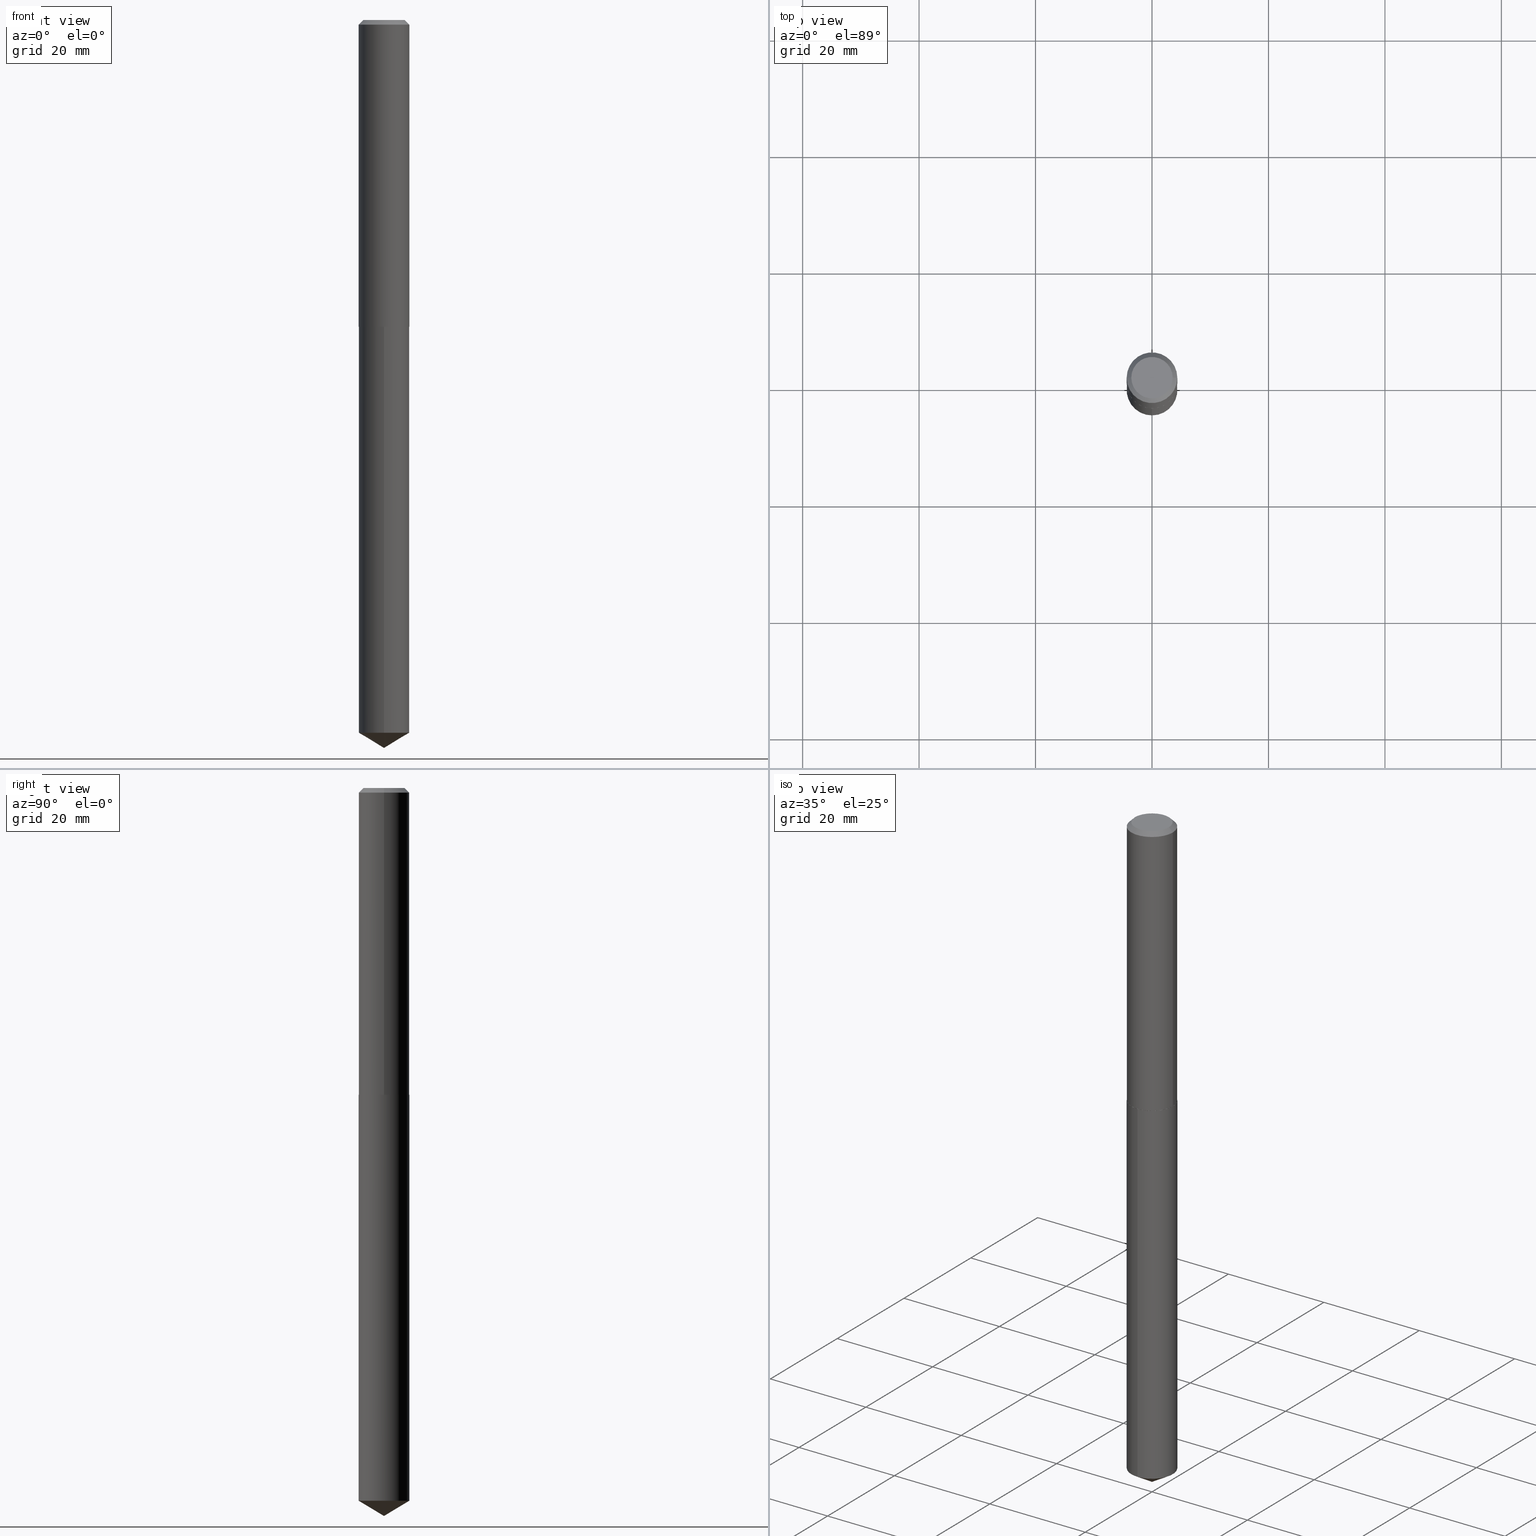
[diagram: canonical four-view strip — front | top / right | iso, engineering-drawing reading convention]
A machine part, canonical four-view strip (front | top / right | iso — engineering-drawing reading convention). The complete STEP part file that produces these views, byte-faithful:
ISO-10303-21;
HEADER;
FILE_DESCRIPTION (( 'STEP AP203' ),
    '1' );
FILE_NAME ('68355.STEP',
    '2024-04-23T13:14:00',
    ( '' ),
    ( '' ),
    'SwSTEP 2.0',
    'SolidWorks 2023',
    '' );
FILE_SCHEMA (( 'CONFIG_CONTROL_DESIGN' ));
ENDSEC;

DATA;
#1 = PLANE ( 'NONE',  #218 ) ;
#2 = CC_DESIGN_DATE_AND_TIME_ASSIGNMENT ( #336, #76, ( #69 ) ) ;
#3 = DIRECTION ( 'NONE',  ( -0.7071067811865454633, 2.468850131082235367E-15, -0.7071067811865495711 ) ) ;
#4 = ORIENTED_EDGE ( 'NONE', *, *, #39, .F. ) ;
#5 = CARTESIAN_POINT ( 'NONE',  ( 5.070190475863642689E-29, -7.238888259823493055E-15, -2.073299999999999699 ) ) ;
#6 = APPROVAL_DATE_TIME ( #243, #147 ) ;
#7 = CIRCLE ( 'NONE', #382, 0.1712500000000000133 ) ;
#8 = LINE ( 'NONE', #270, #57 ) ;
#9 = ADVANCED_FACE ( 'NONE', ( #172 ), #342, .T. ) ;
#10 = PERSON_AND_ORGANIZATION ( #262, #98 ) ;
#11 = DIRECTION ( 'NONE',  ( -2.445501526088303412E-29, 3.491434482079509131E-15, 1.000000000000000000 ) ) ;
#12 =( NAMED_UNIT ( * ) PLANE_ANGLE_UNIT ( ) SI_UNIT ( $, .RADIAN. ) );
#13 = EDGE_LOOP ( 'NONE', ( #50, #310 ) ) ;
#14 = CIRCLE ( 'NONE', #73, 0.1712500000000002354 ) ;
#15 = CIRCLE ( 'NONE', #289, 0.1712500000000000133 ) ;
#16 = AXIS2_PLACEMENT_3D ( 'NONE', #90, #11, #121 ) ;
#17 = EDGE_LOOP ( 'NONE', ( #228, #288, #136, #4 ) ) ;
#18 = CC_DESIGN_PERSON_AND_ORGANIZATION_ASSIGNMENT ( #334, #369, ( #69 ) ) ;
#19 = PERSON_AND_ORGANIZATION_ROLE ( 'design_owner' ) ;
#20 = VERTEX_POINT ( 'NONE', #335 ) ;
#21 = ORIENTED_EDGE ( 'NONE', *, *, #84, .T. ) ;
#22 = CONICAL_SURFACE ( 'NONE', #182, 65.52281426576962531, 1.029744258676662527 ) ;
#23 = ORIENTED_EDGE ( 'NONE', *, *, #144, .F. ) ;
#24 = SECURITY_CLASSIFICATION ( '', '', #324 ) ;
#25 = DESIGN_CONTEXT ( 'detailed design', #119, 'design' ) ;
#26 = VERTEX_POINT ( 'NONE', #290 ) ;
#27 = DIRECTION ( 'NONE',  ( -2.445468806185136597E-29, 3.491481338843145583E-15, 1.000000000000000000 ) ) ;
#28 = EDGE_CURVE ( 'NONE', #26, #370, #122, .T. ) ;
#29 = CARTESIAN_POINT ( 'NONE',  ( 1.203504666033836704E-28, -1.718239651665788974E-14, -4.921299999999999564 ) ) ;
#30 = LINE ( 'NONE', #173, #64 ) ;
#31 = ORIENTED_EDGE ( 'NONE', *, *, #171, .T. ) ;
#32 = CARTESIAN_POINT ( 'NONE',  ( 1.216804434989222150E-15, 0.1712499999999927691, -2.073800000000000310 ) ) ;
#33 = DIRECTION ( 'NONE',  ( -2.445501526088303412E-29, 3.491434482079509131E-15, 1.000000000000000000 ) ) ;
#34 = EDGE_CURVE ( 'NONE', #20, #307, #311, .T. ) ;
#35 = VECTOR ( 'NONE', #3, 39.37007874015748143 ) ;
#36 = DIRECTION ( 'NONE',  ( -2.438088387897960049E-29, 3.491481338843145188E-15, 1.000000000000000000 ) ) ;
#37 = DIRECTION ( 'NONE',  ( -2.445468806185136597E-29, 3.491481338843145583E-15, 1.000000000000000000 ) ) ;
#38 = PERSON_AND_ORGANIZATION ( #262, #98 ) ;
#39 = EDGE_CURVE ( 'NONE', #79, #159, #378, .T. ) ;
#40 = FACE_OUTER_BOUND ( 'NONE', #359, .T. ) ;
#41 = DIRECTION ( 'NONE',  ( 1.000000000000000000, -6.982962677686265133E-15, 0.000000000000000000 ) ) ;
#42 = DATE_AND_TIME ( #215, #107 ) ;
#43 = CARTESIAN_POINT ( 'NONE',  ( 1.178334310351648346E-28, -1.682323422404567893E-14, -4.818402618991531661 ) ) ;
#44 = LINE ( 'NONE', #214, #35 ) ;
#45 = DIRECTION ( 'NONE',  ( 1.000000000000000000, -6.982962677686266711E-15, 0.000000000000000000 ) ) ;
#46 = CC_DESIGN_PERSON_AND_ORGANIZATION_ASSIGNMENT ( #10, #331, ( #24 ) ) ;
#47 = CARTESIAN_POINT ( 'NONE',  ( 7.642090019328598283E-31, -1.091087918388489651E-16, -0.03125000000000019429 ) ) ;
#48 = APPROVAL_ROLE ( '' ) ;
#49 = APPROVAL_PERSON_ORGANIZATION ( #191, #147, #92 ) ;
#50 = ORIENTED_EDGE ( 'NONE', *, *, #332, .T. ) ;
#51 = DIRECTION ( 'NONE',  ( 2.445468806185136597E-29, -3.491481338843145583E-15, -1.000000000000000000 ) ) ;
#52 = EDGE_LOOP ( 'NONE', ( #23, #185, #142, #68 ) ) ;
#53 = CLOSED_SHELL ( 'NONE', ( #294, #9, #105, #303, #264, #200, #97, #242 ) ) ;
#54 = CARTESIAN_POINT ( 'NONE',  ( 0.000000000000000000, 0.000000000000000000, 0.000000000000000000 ) ) ;
#55 = CONICAL_SURFACE ( 'NONE', #96, 0.1712500000000002354, 0.7853981633970044118 ) ;
#56 = ORIENTED_EDGE ( 'NONE', *, *, #319, .F. ) ;
#57 = VECTOR ( 'NONE', #272, 39.37007874015748143 ) ;
#58 = CARTESIAN_POINT ( 'NONE',  ( 1.216804434989290189E-15, 0.1712499999999927691, -2.073800000000000310 ) ) ;
#59 = CARTESIAN_POINT ( 'NONE',  ( 5.070190475863642689E-29, -7.238888259823493055E-15, -2.073299999999999699 ) ) ;
#60 = CIRCLE ( 'NONE', #273, 0.1707500000000004847 ) ;
#61 = EDGE_CURVE ( 'NONE', #307, #20, #7, .T. ) ;
#62 = DIRECTION ( 'NONE',  ( 1.000000000000000000, -6.982962677686265922E-15, 4.876177996939016778E-29 ) ) ;
#63 = CARTESIAN_POINT ( 'NONE',  ( 0.1400000000000000133, -1.122219396822619173E-15, 2.388061258410762627E-19 ) ) ;
#64 = VECTOR ( 'NONE', #291, 39.37007874015748143 ) ;
#65 = AXIS2_PLACEMENT_3D ( 'NONE', #104, #193, #221 ) ;
#66 = CALENDAR_DATE ( 2024, 23, 4 ) ;
#67 = PLANE ( 'NONE',  #352 ) ;
#68 = ORIENTED_EDGE ( 'NONE', *, *, #110, .F. ) ;
#69 = PRODUCT_DEFINITION ( 'UNKNOWN', '', #274, #25 ) ;
#70 = CARTESIAN_POINT ( 'NONE',  ( 5.071413210266735491E-29, -7.240634000492913769E-15, -2.073799999999999422 ) ) ;
#71 = DIRECTION ( 'NONE',  ( -6.982962677686265922E-15, -1.000000000000000000, 3.190479408658993096E-15 ) ) ;
#72 = PERSON_AND_ORGANIZATION_ROLE ( 'creator' ) ;
#73 = AXIS2_PLACEMENT_3D ( 'NONE', #315, #89, #261 ) ;
#74 =( CONVERSION_BASED_UNIT ( 'INCH', #156 ) LENGTH_UNIT ( ) NAMED_UNIT ( #379 ) );
#75 = CARTESIAN_POINT ( 'NONE',  ( 7.642090019328598283E-31, -1.091087918388489651E-16, -0.03125000000000019429 ) ) ;
#76 = DATE_TIME_ROLE ( 'creation_date' ) ;
#77 = EDGE_LOOP ( 'NONE', ( #167, #364, #374, #212 ) ) ;
#78 =( NAMED_UNIT ( * ) SI_UNIT ( $, .STERADIAN. ) SOLID_ANGLE_UNIT ( ) );
#79 = VERTEX_POINT ( 'NONE', #166 ) ;
#80 = DIRECTION ( 'NONE',  ( -2.445468806185136597E-29, 3.491481338843145583E-15, 1.000000000000000000 ) ) ;
#81 = ORIENTED_EDGE ( 'NONE', *, *, #175, .T. ) ;
#82 = CARTESIAN_POINT ( 'NONE',  ( 1.216804434989289598E-15, 0.1712499999999831934, -4.818402618991532549 ) ) ;
#83 = DIRECTION ( 'NONE',  ( 1.000000000000000000, -6.982962677686269077E-15, 0.000000000000000000 ) ) ;
#84 = EDGE_CURVE ( 'NONE', #252, #108, #267, .T. ) ;
#85 = CARTESIAN_POINT ( 'NONE',  ( 1.203504785034672388E-28, -1.718239651665788974E-14, -4.921299999999999564 ) ) ;
#86 = CYLINDRICAL_SURFACE ( 'NONE', #111, 0.1712500000000001243 ) ;
#87 = CONICAL_SURFACE ( 'NONE', #91, 0.1712500000000000133, 0.7853981633974453924 ) ;
#88 = EDGE_CURVE ( 'NONE', #159, #20, #205, .T. ) ;
#89 = DIRECTION ( 'NONE',  ( -2.445468806185136597E-29, 3.491481338843145583E-15, 1.000000000000000000 ) ) ;
#90 = CARTESIAN_POINT ( 'NONE',  ( 1.178334310351648346E-28, -1.682323422404567893E-14, -4.818402618991531661 ) ) ;
#91 = AXIS2_PLACEMENT_3D ( 'NONE', #323, #276, #354 ) ;
#92 = APPROVAL_ROLE ( '' ) ;
#93 = CARTESIAN_POINT ( 'NONE',  ( 2.754539246330722111E-29, -1.055852938512596701E-14, -2.073799999999999422 ) ) ;
#94 = APPROVAL_ROLE ( '' ) ;
#95 = DIRECTION ( 'NONE',  ( -2.445501526088303412E-29, 3.491434482079509131E-15, 1.000000000000000000 ) ) ;
#96 = AXIS2_PLACEMENT_3D ( 'NONE', #5, #37, #41 ) ;
#97 = ADVANCED_FACE ( 'NONE', ( #40 ), #226, .T. ) ;
#98 = ORGANIZATION ( 'UNSPECIFIED', 'UNSPECIFIED', '' ) ;
#99 = DATE_AND_TIME ( #131, #141 ) ;
#100 = ORIENTED_EDGE ( 'NONE', *, *, #155, .T. ) ;
#101 = APPLICATION_PROTOCOL_DEFINITION ( 'international standard', 'config_control_design', 1994, #135 ) ;
#102 = ORIENTED_EDGE ( 'NONE', *, *, #28, .F. ) ;
#103 = CLOSED_SHELL ( 'NONE', ( #337, #117, #222, #269, #377 ) ) ;
#104 = CARTESIAN_POINT ( 'NONE',  ( 0.000000000000000000, 0.000000000000000000, 0.000000000000000000 ) ) ;
#105 = ADVANCED_FACE ( 'NONE', ( #260 ), #133, .T. ) ;
#106 = ORIENTED_EDGE ( 'NONE', *, *, #286, .T. ) ;
#107 = LOCAL_TIME ( 9, 14, 0.000000000000000000, #239 ) ;
#108 = VERTEX_POINT ( 'NONE', #82 ) ;
#109 = ORIENTED_EDGE ( 'NONE', *, *, #163, .T. ) ;
#110 = EDGE_CURVE ( 'NONE', #179, #159, #339, .T. ) ;
#111 = AXIS2_PLACEMENT_3D ( 'NONE', #233, #347, #146 ) ;
#112 = FACE_OUTER_BOUND ( 'NONE', #157, .T. ) ;
#113 = LOCAL_TIME ( 9, 14, 0.000000000000000000, #186 ) ;
#114 = LINE ( 'NONE', #381, #318 ) ;
#115 = DIRECTION ( 'NONE',  ( 1.000000000000000000, -6.982962677686265133E-15, 0.000000000000000000 ) ) ;
#116 = AXIS2_PLACEMENT_3D ( 'NONE', #54, #80, #169 ) ;
#117 = ADVANCED_FACE ( 'NONE', ( #293 ), #22, .T. ) ;
#118 = DIRECTION ( 'NONE',  ( -2.445501526088303412E-29, 3.491434482079509131E-15, 1.000000000000000000 ) ) ;
#119 = APPLICATION_CONTEXT ( 'configuration controlled 3d designs of mechanical parts and assemblies' ) ;
#120 = CARTESIAN_POINT ( 'NONE',  ( -2.919964657261599251E-48, 4.168935659749557485E-34, 1.194030629168671885E-19 ) ) ;
#121 = DIRECTION ( 'NONE',  ( -6.982962677686265922E-15, -1.000000000000000000, 3.190479408658993096E-15 ) ) ;
#122 = CIRCLE ( 'NONE', #230, 0.1400000000000000133 ) ;
#123 = SHAPE_DEFINITION_REPRESENTATION ( #284, #349 ) ;
#124 = CARTESIAN_POINT ( 'NONE',  ( -1.195832358553722450E-15, -0.1712500000000072575, -2.073799999999998978 ) ) ;
#125 = AXIS2_PLACEMENT_3D ( 'NONE', #59, #295, #350 ) ;
#126 = CARTESIAN_POINT ( 'NONE',  ( -0.1707500000000004847, -6.024733052008430226E-15, -2.073799999999999866 ) ) ;
#127 = VERTEX_POINT ( 'NONE', #58 ) ;
#128 = COORDINATED_UNIVERSAL_TIME_OFFSET ( 5, 0, .BEHIND. ) ;
#129 = CARTESIAN_POINT ( 'NONE',  ( 5.071413210266735491E-29, -7.240634000492913769E-15, -2.073799999999999422 ) ) ;
#130 = ORIENTED_EDGE ( 'NONE', *, *, #316, .T. ) ;
#131 = CALENDAR_DATE ( 2024, 23, 4 ) ;
#132 = ORIENTED_EDGE ( 'NONE', *, *, #204, .T. ) ;
#133 = CONICAL_SURFACE ( 'NONE', #125, 0.1712500000000002354, 0.7853981633970044118 ) ;
#134 = AXIS2_PLACEMENT_3D ( 'NONE', #181, #298, #244 ) ;
#135 = APPLICATION_CONTEXT ( 'configuration controlled 3d designs of mechanical parts and assemblies' ) ;
#136 = ORIENTED_EDGE ( 'NONE', *, *, #163, .F. ) ;
#137 = PERSON_AND_ORGANIZATION ( #262, #98 ) ;
#138 = CC_DESIGN_PERSON_AND_ORGANIZATION_ASSIGNMENT ( #360, #72, ( #274 ) ) ;
#139 = EDGE_LOOP ( 'NONE', ( #238, #278, #376, #327 ) ) ;
#140 = EDGE_LOOP ( 'NONE', ( #309, #21, #367 ) ) ;
#141 = LOCAL_TIME ( 9, 14, 0.000000000000000000, #304 ) ;
#142 = ORIENTED_EDGE ( 'NONE', *, *, #39, .T. ) ;
#143 = DIRECTION ( 'NONE',  ( 1.000000000000000000, -6.982962677686265922E-15, 4.876177996939016778E-29 ) ) ;
#144 = EDGE_CURVE ( 'NONE', #372, #179, #321, .T. ) ;
#145 = CARTESIAN_POINT ( 'NONE',  ( 5.070190475863642689E-29, -7.238888259823493055E-15, -2.073299999999999699 ) ) ;
#146 = DIRECTION ( 'NONE',  ( 1.000000000000000000, -6.982962677686267499E-15, 4.876176775795935793E-29 ) ) ;
#147 = APPROVAL ( #365, 'UNSPECIFIED' ) ;
#148 = DIRECTION ( 'NONE',  ( -1.000000000000000000, 6.982962677686266711E-15, 0.000000000000000000 ) ) ;
#149 = ORIENTED_EDGE ( 'NONE', *, *, #34, .F. ) ;
#150 = FACE_OUTER_BOUND ( 'NONE', #77, .T. ) ;
#151 = CARTESIAN_POINT ( 'NONE',  ( 5.071413210266735491E-29, -7.240634000492915347E-15, -2.073799999999999866 ) ) ;
#152 = CIRCLE ( 'NONE', #231, 0.1712500000000000133 ) ;
#153 = DIRECTION ( 'NONE',  ( -2.445501526088303412E-29, 3.491434482079509131E-15, 1.000000000000000000 ) ) ;
#154 = DATE_TIME_ROLE ( 'classification_date' ) ;
#155 = EDGE_CURVE ( 'NONE', #108, #127, #386, .T. ) ;
#156 = LENGTH_MEASURE_WITH_UNIT ( LENGTH_MEASURE( 0.02539999999999999897 ), #333 );
#157 = EDGE_LOOP ( 'NONE', ( #201, #31, #357 ) ) ;
#158 = FACE_OUTER_BOUND ( 'NONE', #229, .T. ) ;
#159 = VERTEX_POINT ( 'NONE', #385 ) ;
#160 = CIRCLE ( 'NONE', #266, 0.1712500000000000133 ) ;
#161 = CALENDAR_DATE ( 2024, 23, 4 ) ;
#162 = DIRECTION ( 'NONE',  ( 1.000000000000000000, -6.982962677686269077E-15, 0.000000000000000000 ) ) ;
#163 = EDGE_CURVE ( 'NONE', #159, #179, #14, .T. ) ;
#164 = DIRECTION ( 'NONE',  ( -6.982962677686265922E-15, -1.000000000000000000, 3.190479408658993096E-15 ) ) ;
#165 = COORDINATED_UNIVERSAL_TIME_OFFSET ( 5, 0, .BEHIND. ) ;
#166 = CARTESIAN_POINT ( 'NONE',  ( 0.1707500000000004847, -8.432974877707848827E-15, -2.073799999999999866 ) ) ;
#167 = ORIENTED_EDGE ( 'NONE', *, *, #175, .F. ) ;
#168 = CARTESIAN_POINT ( 'NONE',  ( -5.839929314523198503E-48, 8.337871319499114970E-34, 2.388061258337343770E-19 ) ) ;
#169 = DIRECTION ( 'NONE',  ( 1.000000000000000000, -6.982962677686267499E-15, 4.876176775795935793E-29 ) ) ;
#170 = VECTOR ( 'NONE', #207, 39.37007874015748143 ) ;
#171 = EDGE_CURVE ( 'NONE', #252, #253, #114, .T. ) ;
#172 = FACE_OUTER_BOUND ( 'NONE', #217, .T. ) ;
#173 = CARTESIAN_POINT ( 'NONE',  ( -0.1712500000000001243, 1.216804434989172452E-15, -8.423676342061532268E-30 ) ) ;
#174 = FACE_OUTER_BOUND ( 'NONE', #196, .T. ) ;
#175 = EDGE_CURVE ( 'NONE', #179, #307, #30, .T. ) ;
#176 = CONICAL_SURFACE ( 'NONE', #373, 65.52281426576962531, 1.029744258676662527 ) ;
#177 = DIRECTION ( 'NONE',  ( -2.445468806185136597E-29, 3.491481338843145583E-15, 1.000000000000000000 ) ) ;
#178 = LOCAL_TIME ( 9, 14, 0.000000000000000000, #128 ) ;
#179 = VERTEX_POINT ( 'NONE', #259 ) ;
#180 = CARTESIAN_POINT ( 'NONE',  ( -8.424460883546861379E-28, 1.202755567873569055E-13, 34.44877874015747921 ) ) ;
#181 = CARTESIAN_POINT ( 'NONE',  ( 5.071413210266735491E-29, -7.240634000492913769E-15, -2.073799999999999422 ) ) ;
#182 = AXIS2_PLACEMENT_3D ( 'NONE', #387, #118, #344 ) ;
#183 = CC_DESIGN_PERSON_AND_ORGANIZATION_ASSIGNMENT ( #38, #246, ( #274 ) ) ;
#184 = PLANE ( 'NONE',  #134 ) ;
#185 = ORIENTED_EDGE ( 'NONE', *, *, #279, .T. ) ;
#186 = COORDINATED_UNIVERSAL_TIME_OFFSET ( 5, 0, .BEHIND. ) ;
#187 = DIRECTION ( 'NONE',  ( -6.982962677686265922E-15, -1.000000000000000000, 3.190479408658993096E-15 ) ) ;
#188 = CYLINDRICAL_SURFACE ( 'NONE', #320, 0.1712500000000000133 ) ;
#189 = VECTOR ( 'NONE', #389, 39.37007874015748143 ) ;
#190 =( GEOMETRIC_REPRESENTATION_CONTEXT ( 3 ) GLOBAL_UNCERTAINTY_ASSIGNED_CONTEXT ( ( #388 ) ) GLOBAL_UNIT_ASSIGNED_CONTEXT ( ( #74, #12, #78 ) ) REPRESENTATION_CONTEXT ( 'NONE', 'WORKASPACE' ) );
#191 = PERSON_AND_ORGANIZATION ( #262, #98 ) ;
#192 = DIRECTION ( 'NONE',  ( -2.445501526088303412E-29, 3.491434482079509131E-15, 1.000000000000000000 ) ) ;
#193 = DIRECTION ( 'NONE',  ( 0.000000000000000000, 0.000000000000000000, 1.000000000000000000 ) ) ;
#194 = CARTESIAN_POINT ( 'NONE',  ( 7.642090019328598283E-31, -1.091087918388489651E-16, -0.03125000000000019429 ) ) ;
#195 = PERSON_AND_ORGANIZATION ( #262, #98 ) ;
#196 = EDGE_LOOP ( 'NONE', ( #282, #275 ) ) ;
#197 = APPROVAL_PERSON_ORGANIZATION ( #195, #250, #94 ) ;
#198 = EDGE_LOOP ( 'NONE', ( #343, #225 ) ) ;
#199 = ORIENTED_EDGE ( 'NONE', *, *, #61, .T. ) ;
#200 = ADVANCED_FACE ( 'NONE', ( #150 ), #86, .T. ) ;
#201 = ORIENTED_EDGE ( 'NONE', *, *, #84, .F. ) ;
#202 = DIRECTION ( 'NONE',  ( -0.7071067811862336017, 7.493145998869219778E-15, 0.7071067811868614328 ) ) ;
#203 = DIRECTION ( 'NONE',  ( -5.985567269335971256E-15, -0.8571673007021145541, 0.5150380749100501587 ) ) ;
#204 = EDGE_CURVE ( 'NONE', #253, #255, #296, .T. ) ;
#205 = LINE ( 'NONE', #240, #248 ) ;
#206 = CARTESIAN_POINT ( 'NONE',  ( -1.195832358553722450E-15, -0.1712500000000072575, -2.073799999999998978 ) ) ;
#207 = DIRECTION ( 'NONE',  ( -2.445501526088303693E-29, 3.491434482079509131E-15, 1.000000000000000000 ) ) ;
#208 = CC_DESIGN_PERSON_AND_ORGANIZATION_ASSIGNMENT ( #251, #19, ( #341 ) ) ;
#209 = FACE_OUTER_BOUND ( 'NONE', #139, .T. ) ;
#210 = APPROVAL_DATE_TIME ( #42, #250 ) ;
#211 = FACE_OUTER_BOUND ( 'NONE', #340, .T. ) ;
#212 = ORIENTED_EDGE ( 'NONE', *, *, #61, .F. ) ;
#213 = EDGE_CURVE ( 'NONE', #370, #26, #281, .T. ) ;
#214 = CARTESIAN_POINT ( 'NONE',  ( -0.1712500000000000133, 1.086723566714924429E-15, -0.03125000000000019429 ) ) ;
#215 = CALENDAR_DATE ( 2024, 23, 4 ) ;
#216 = CARTESIAN_POINT ( 'NONE',  ( 5.071413210266735491E-29, -7.240634000492913769E-15, -2.073799999999999422 ) ) ;
#217 = EDGE_LOOP ( 'NONE', ( #109, #81, #149, #329 ) ) ;
#218 = AXIS2_PLACEMENT_3D ( 'NONE', #120, #317, #292 ) ;
#219 = APPROVAL_DATE_TIME ( #99, #254 ) ;
#220 = DIRECTION ( 'NONE',  ( 0.7071067811862336017, -2.468850131078969088E-15, 0.7071067811868614328 ) ) ;
#221 = DIRECTION ( 'NONE',  ( 1.000000000000000000, 0.000000000000000000, 0.000000000000000000 ) ) ;
#222 = ADVANCED_FACE ( 'NONE', ( #112 ), #176, .T. ) ;
#223 = ORIENTED_EDGE ( 'NONE', *, *, #155, .F. ) ;
#224 = VECTOR ( 'NONE', #220, 39.37007874015748143 ) ;
#225 = ORIENTED_EDGE ( 'NONE', *, *, #279, .F. ) ;
#226 = CONICAL_SURFACE ( 'NONE', #256, 0.1712500000000000133, 0.7853981633974453924 ) ;
#227 = CC_DESIGN_APPROVAL ( #254, ( #69 ) ) ;
#228 = ORIENTED_EDGE ( 'NONE', *, *, #236, .T. ) ;
#229 = EDGE_LOOP ( 'NONE', ( #223, #312, #132, #257 ) ) ;
#230 = AXIS2_PLACEMENT_3D ( 'NONE', #168, #338, #143 ) ;
#231 = AXIS2_PLACEMENT_3D ( 'NONE', #43, #326, #164 ) ;
#232 = DIRECTION ( 'NONE',  ( -6.982962677686266711E-15, -1.000000000000000000, 3.468864327941531105E-15 ) ) ;
#233 = CARTESIAN_POINT ( 'NONE',  ( 0.000000000000000000, 0.000000000000000000, 0.000000000000000000 ) ) ;
#234 = VECTOR ( 'NONE', #353, 39.37007874015748143 ) ;
#235 = CC_DESIGN_SECURITY_CLASSIFICATION ( #24, ( #274 ) ) ;
#236 = EDGE_CURVE ( 'NONE', #79, #372, #60, .T. ) ;
#237 = DIRECTION ( 'NONE',  ( -6.982962677686265922E-15, -1.000000000000000000, 3.190479408658993096E-15 ) ) ;
#238 = ORIENTED_EDGE ( 'NONE', *, *, #213, .F. ) ;
#239 = COORDINATED_UNIVERSAL_TIME_OFFSET ( 5, 0, .BEHIND. ) ;
#240 = CARTESIAN_POINT ( 'NONE',  ( 0.1712500000000001243, -1.195832358553774121E-15, 8.350452728550546071E-30 ) ) ;
#241 = CARTESIAN_POINT ( 'NONE',  ( 5.071413210266735491E-29, -7.240634000492915347E-15, -2.073799999999999866 ) ) ;
#242 = ADVANCED_FACE ( 'NONE', ( #174 ), #1, .F. ) ;
#243 = DATE_AND_TIME ( #161, #178 ) ;
#244 = DIRECTION ( 'NONE',  ( 6.982962677686265922E-15, 1.000000000000000000, -3.491434482079509131E-15 ) ) ;
#245 = FACE_OUTER_BOUND ( 'NONE', #198, .T. ) ;
#246 = PERSON_AND_ORGANIZATION_ROLE ( 'design_supplier' ) ;
#247 = APPROVAL_STATUS ( 'not_yet_approved' ) ;
#248 = VECTOR ( 'NONE', #297, 39.37007874015748143 ) ;
#249 = LOCAL_TIME ( 9, 14, 0.000000000000000000, #165 ) ;
#250 = APPROVAL ( #306, 'UNSPECIFIED' ) ;
#251 = PERSON_AND_ORGANIZATION ( #262, #98 ) ;
#252 = VERTEX_POINT ( 'NONE', #29 ) ;
#253 = VERTEX_POINT ( 'NONE', #301 ) ;
#254 = APPROVAL ( #247, 'UNSPECIFIED' ) ;
#255 = VERTEX_POINT ( 'NONE', #124 ) ;
#256 = AXIS2_PLACEMENT_3D ( 'NONE', #47, #51, #148 ) ;
#257 = ORIENTED_EDGE ( 'NONE', *, *, #384, .F. ) ;
#258 = DIRECTION ( 'NONE',  ( -2.445468806185136597E-29, 3.491481338843145583E-15, 1.000000000000000000 ) ) ;
#259 = CARTESIAN_POINT ( 'NONE',  ( -0.1712500000000002354, -6.022083824834319025E-15, -2.073299999999999699 ) ) ;
#260 = FACE_OUTER_BOUND ( 'NONE', #17, .T. ) ;
#261 = DIRECTION ( 'NONE',  ( 1.000000000000000000, -6.982962677686265133E-15, 0.000000000000000000 ) ) ;
#262 = PERSON ( 'UNSPECIFIED', 'UNSPECIFIED', 'UNSPECIFIED', ('UNSPECIFIED'), ('UNSPECIFIED'), ('UNSPECIFIED') ) ;
#263 = ORIENTED_EDGE ( 'NONE', *, *, #332, .F. ) ;
#264 = ADVANCED_FACE ( 'NONE', ( #302 ), #55, .T. ) ;
#265 = CARTESIAN_POINT ( 'NONE',  ( -0.1712500000000002354, -6.022083824834319025E-15, -2.073299999999999699 ) ) ;
#266 = AXIS2_PLACEMENT_3D ( 'NONE', #129, #95, #187 ) ;
#267 = LINE ( 'NONE', #85, #189 ) ;
#268 = CYLINDRICAL_SURFACE ( 'NONE', #345, 0.1712500000000000133 ) ;
#269 = ADVANCED_FACE ( 'NONE', ( #158 ), #268, .T. ) ;
#270 = CARTESIAN_POINT ( 'NONE',  ( 0.1712500000000000133, -1.283969073957224102E-15, -0.03125000000000019429 ) ) ;
#271 = ORIENTED_EDGE ( 'NONE', *, *, #204, .F. ) ;
#272 = DIRECTION ( 'NONE',  ( 0.7071067811865454633, -7.319954787623248157E-15, -0.7071067811865495711 ) ) ;
#273 = AXIS2_PLACEMENT_3D ( 'NONE', #151, #346, #83 ) ;
#274 = PRODUCT_DEFINITION_FORMATION_WITH_SPECIFIED_SOURCE ( 'ANY', '', #341, .NOT_KNOWN. ) ;
#275 = ORIENTED_EDGE ( 'NONE', *, *, #213, .T. ) ;
#276 = DIRECTION ( 'NONE',  ( 2.445468806185136597E-29, -3.491481338843145583E-15, -1.000000000000000000 ) ) ;
#277 = FACE_OUTER_BOUND ( 'NONE', #13, .T. ) ;
#278 = ORIENTED_EDGE ( 'NONE', *, *, #319, .T. ) ;
#279 = EDGE_CURVE ( 'NONE', #372, #79, #314, .T. ) ;
#280 = CALENDAR_DATE ( 2024, 23, 4 ) ;
#281 = CIRCLE ( 'NONE', #325, 0.1400000000000000133 ) ;
#282 = ORIENTED_EDGE ( 'NONE', *, *, #28, .T. ) ;
#283 = APPROVAL_PERSON_ORGANIZATION ( #137, #254, #48 ) ;
#284 = PRODUCT_DEFINITION_SHAPE ( 'NONE', 'NONE',  #69 ) ;
#285 = DIRECTION ( 'NONE',  ( 1.000000000000000000, -6.982962677686266711E-15, 0.000000000000000000 ) ) ;
#286 = EDGE_CURVE ( 'NONE', #253, #108, #152, .T. ) ;
#287 = DIRECTION ( 'NONE',  ( -2.445468806185136597E-29, 3.491481338843145583E-15, 1.000000000000000000 ) ) ;
#288 = ORIENTED_EDGE ( 'NONE', *, *, #144, .T. ) ;
#289 = AXIS2_PLACEMENT_3D ( 'NONE', #330, #153, #71 ) ;
#290 = CARTESIAN_POINT ( 'NONE',  ( -0.1400000000000000133, 1.032169170795500864E-15, 2.388061258267069475E-19 ) ) ;
#291 = DIRECTION ( 'NONE',  ( -2.445468806185136877E-29, 3.491481338843145188E-15, 1.000000000000000000 ) ) ;
#292 = DIRECTION ( 'NONE',  ( -1.000000000000000000, 6.982962677686265922E-15, -4.876176775795935793E-29 ) ) ;
#293 = FACE_OUTER_BOUND ( 'NONE', #140, .T. ) ;
#294 = ADVANCED_FACE ( 'NONE', ( #209 ), #87, .T. ) ;
#295 = DIRECTION ( 'NONE',  ( -2.445468806185136597E-29, 3.491481338843145583E-15, 1.000000000000000000 ) ) ;
#296 = LINE ( 'NONE', #206, #170 ) ;
#297 = DIRECTION ( 'NONE',  ( -2.445468806185136877E-29, 3.491481338843145188E-15, 1.000000000000000000 ) ) ;
#298 = DIRECTION ( 'NONE',  ( 2.445501526088303412E-29, -3.491434482079509131E-15, -1.000000000000000000 ) ) ;
#299 = DIRECTION ( 'NONE',  ( -2.445501526088303412E-29, 3.491434482079509131E-15, 1.000000000000000000 ) ) ;
#300 = PRODUCT_RELATED_PRODUCT_CATEGORY ( 'detail', '', ( #341 ) ) ;
#301 = CARTESIAN_POINT ( 'NONE',  ( -1.195832358553655397E-15, -0.1712500000000168887, -4.818402618991531661 ) ) ;
#302 = FACE_OUTER_BOUND ( 'NONE', #52, .T. ) ;
#303 = ADVANCED_FACE ( 'NONE', ( #245 ), #67, .F. ) ;
#304 = COORDINATED_UNIVERSAL_TIME_OFFSET ( 5, 0, .BEHIND. ) ;
#305 = CARTESIAN_POINT ( 'NONE',  ( 0.1712500000000002354, -8.434720618377267964E-15, -2.073299999999999699 ) ) ;
#306 = APPROVAL_STATUS ( 'not_yet_approved' ) ;
#307 = VERTEX_POINT ( 'NONE', #363 ) ;
#308 = APPLICATION_PROTOCOL_DEFINITION ( 'international standard', 'config_control_design', 1994, #119 ) ;
#309 = ORIENTED_EDGE ( 'NONE', *, *, #171, .F. ) ;
#310 = ORIENTED_EDGE ( 'NONE', *, *, #384, .T. ) ;
#311 = CIRCLE ( 'NONE', #380, 0.1712500000000000133 ) ;
#312 = ORIENTED_EDGE ( 'NONE', *, *, #348, .T. ) ;
#313 = AXIS2_PLACEMENT_3D ( 'NONE', #145, #177, #115 ) ;
#314 = CIRCLE ( 'NONE', #383, 0.1707500000000004847 ) ;
#315 = CARTESIAN_POINT ( 'NONE',  ( 5.070190475863642689E-29, -7.238888259823493055E-15, -2.073299999999999699 ) ) ;
#316 = EDGE_CURVE ( 'NONE', #26, #307, #44, .T. ) ;
#317 = DIRECTION ( 'NONE',  ( 2.438088387897960049E-29, -3.491481338843145188E-15, -1.000000000000000000 ) ) ;
#318 = VECTOR ( 'NONE', #203, 39.37007874015748854 ) ;
#319 = EDGE_CURVE ( 'NONE', #370, #20, #8, .T. ) ;
#320 = AXIS2_PLACEMENT_3D ( 'NONE', #216, #192, #358 ) ;
#321 = LINE ( 'NONE', #265, #351 ) ;
#322 = CARTESIAN_POINT ( 'NONE',  ( -5.839929314523198503E-48, 8.337871319499114970E-34, 2.388061258337343770E-19 ) ) ;
#323 = CARTESIAN_POINT ( 'NONE',  ( 7.642090019328598283E-31, -1.091087918388489651E-16, -0.03125000000000019429 ) ) ;
#324 = SECURITY_CLASSIFICATION_LEVEL ( 'unclassified' ) ;
#325 = AXIS2_PLACEMENT_3D ( 'NONE', #322, #27, #62 ) ;
#326 = DIRECTION ( 'NONE',  ( -2.445501526088303412E-29, 3.491434482079509131E-15, 1.000000000000000000 ) ) ;
#327 = ORIENTED_EDGE ( 'NONE', *, *, #316, .F. ) ;
#328 = DATE_AND_TIME ( #66, #113 ) ;
#329 = ORIENTED_EDGE ( 'NONE', *, *, #88, .F. ) ;
#330 = CARTESIAN_POINT ( 'NONE',  ( 5.071413210266735491E-29, -7.240634000492913769E-15, -2.073799999999999422 ) ) ;
#331 = PERSON_AND_ORGANIZATION_ROLE ( 'classification_officer' ) ;
#332 = EDGE_CURVE ( 'NONE', #255, #127, #15, .T. ) ;
#333 =( LENGTH_UNIT ( ) NAMED_UNIT ( * ) SI_UNIT ( $, .METRE. ) );
#334 = PERSON_AND_ORGANIZATION ( #262, #98 ) ;
#335 = CARTESIAN_POINT ( 'NONE',  ( 0.1712500000000000133, -1.304941150392622433E-15, -0.03125000000000019429 ) ) ;
#336 = DATE_AND_TIME ( #280, #249 ) ;
#337 = ADVANCED_FACE ( 'NONE', ( #211 ), #188, .T. ) ;
#338 = DIRECTION ( 'NONE',  ( -2.445468806185136597E-29, 3.491481338843145583E-15, 1.000000000000000000 ) ) ;
#339 = CIRCLE ( 'NONE', #313, 0.1712500000000002354 ) ;
#340 = EDGE_LOOP ( 'NONE', ( #106, #100, #263, #271 ) ) ;
#341 = PRODUCT ( '68355', '68355', '', ( #371 ) ) ;
#342 = CYLINDRICAL_SURFACE ( 'NONE', #116, 0.1712500000000001243 ) ;
#343 = ORIENTED_EDGE ( 'NONE', *, *, #236, .F. ) ;
#344 = DIRECTION ( 'NONE',  ( -6.982962677686266711E-15, -1.000000000000000000, 3.468864327941531105E-15 ) ) ;
#345 = AXIS2_PLACEMENT_3D ( 'NONE', #70, #299, #237 ) ;
#346 = DIRECTION ( 'NONE',  ( -2.445468806185136597E-29, 3.491481338843145583E-15, 1.000000000000000000 ) ) ;
#347 = DIRECTION ( 'NONE',  ( -2.445468806185136597E-29, 3.491481338843145583E-15, 1.000000000000000000 ) ) ;
#348 = EDGE_CURVE ( 'NONE', #108, #253, #366, .T. ) ;
#349 = ADVANCED_BREP_SHAPE_REPRESENTATION ( '68355', ( #362, #368, #65 ), #190 ) ;
#350 = DIRECTION ( 'NONE',  ( 1.000000000000000000, -6.982962677686265133E-15, 0.000000000000000000 ) ) ;
#351 = VECTOR ( 'NONE', #202, 39.37007874015748143 ) ;
#352 = AXIS2_PLACEMENT_3D ( 'NONE', #93, #36, #356 ) ;
#353 = DIRECTION ( 'NONE',  ( -2.445501526088303693E-29, 3.491434482079509131E-15, 1.000000000000000000 ) ) ;
#354 = DIRECTION ( 'NONE',  ( -1.000000000000000000, 6.982962677686266711E-15, 0.000000000000000000 ) ) ;
#355 = CC_DESIGN_DATE_AND_TIME_ASSIGNMENT ( #328, #154, ( #24 ) ) ;
#356 = DIRECTION ( 'NONE',  ( 1.000000000000000000, -6.982962677686265922E-15, 4.876176775795935793E-29 ) ) ;
#357 = ORIENTED_EDGE ( 'NONE', *, *, #348, .F. ) ;
#358 = DIRECTION ( 'NONE',  ( -6.982962677686265922E-15, -1.000000000000000000, 3.190479408658993096E-15 ) ) ;
#359 = EDGE_LOOP ( 'NONE', ( #56, #102, #130, #199 ) ) ;
#360 = PERSON_AND_ORGANIZATION ( #262, #98 ) ;
#361 = DIRECTION ( 'NONE',  ( -2.445468806185136597E-29, 3.491481338843145583E-15, 1.000000000000000000 ) ) ;
#362 = MANIFOLD_SOLID_BREP ( 'Body-Move/Copy2[1]', #103 ) ;
#363 = CARTESIAN_POINT ( 'NONE',  ( -0.1712500000000000133, -2.457194090841997837E-15, -0.03125000000000019429 ) ) ;
#364 = ORIENTED_EDGE ( 'NONE', *, *, #110, .T. ) ;
#365 = APPROVAL_STATUS ( 'not_yet_approved' ) ;
#366 = CIRCLE ( 'NONE', #16, 0.1712500000000000133 ) ;
#367 = ORIENTED_EDGE ( 'NONE', *, *, #286, .F. ) ;
#368 = MANIFOLD_SOLID_BREP ( 'Body-Move/Copy2[2]', #53 ) ;
#369 = PERSON_AND_ORGANIZATION_ROLE ( 'creator' ) ;
#370 = VERTEX_POINT ( 'NONE', #63 ) ;
#371 = MECHANICAL_CONTEXT ( 'NONE', #135, 'mechanical' ) ;
#372 = VERTEX_POINT ( 'NONE', #126 ) ;
#373 = AXIS2_PLACEMENT_3D ( 'NONE', #180, #33, #232 ) ;
#374 = ORIENTED_EDGE ( 'NONE', *, *, #88, .T. ) ;
#375 = CC_DESIGN_APPROVAL ( #147, ( #24 ) ) ;
#376 = ORIENTED_EDGE ( 'NONE', *, *, #34, .T. ) ;
#377 = ADVANCED_FACE ( 'NONE', ( #277 ), #184, .F. ) ;
#378 = LINE ( 'NONE', #305, #224 ) ;
#379 = DIMENSIONAL_EXPONENTS ( 1.000000000000000000, 0.000000000000000000, 0.000000000000000000, 0.000000000000000000, 0.000000000000000000, 0.000000000000000000, 0.000000000000000000 ) ;
#380 = AXIS2_PLACEMENT_3D ( 'NONE', #194, #258, #285 ) ;
#381 = CARTESIAN_POINT ( 'NONE',  ( 1.203491095126799259E-28, -1.718259085977074722E-14, -4.921299999999999564 ) ) ;
#382 = AXIS2_PLACEMENT_3D ( 'NONE', #75, #287, #45 ) ;
#383 = AXIS2_PLACEMENT_3D ( 'NONE', #241, #361, #162 ) ;
#384 = EDGE_CURVE ( 'NONE', #127, #255, #160, .T. ) ;
#385 = CARTESIAN_POINT ( 'NONE',  ( 0.1712500000000002354, -8.434720618377267964E-15, -2.073299999999999699 ) ) ;
#386 = LINE ( 'NONE', #32, #234 ) ;
#387 = CARTESIAN_POINT ( 'NONE',  ( -8.424460883546861379E-28, 1.202755567873569055E-13, 34.44877874015747921 ) ) ;
#388 = UNCERTAINTY_MEASURE_WITH_UNIT (LENGTH_MEASURE( 1.000000000000000082E-05 ), #74, 'distance_accuracy_value', 'NONE');
#389 = DIRECTION ( 'NONE',  ( 6.090539988449809201E-15, 0.8571673007021183288, 0.5150380749100442745 ) ) ;
#390 = CC_DESIGN_APPROVAL ( #250, ( #274 ) ) ;
ENDSEC;
END-ISO-10303-21;
